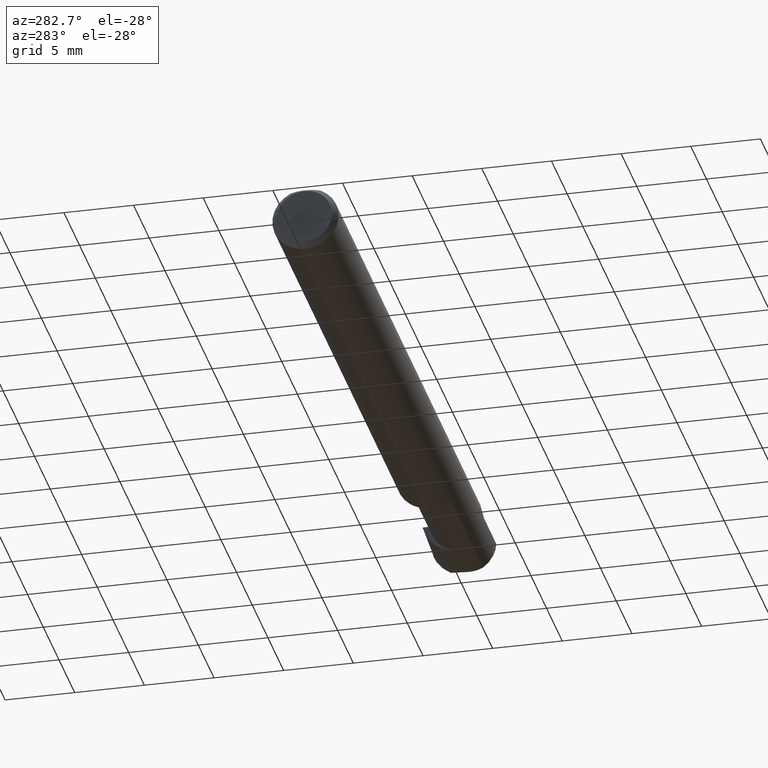
[diagram: clean part render]
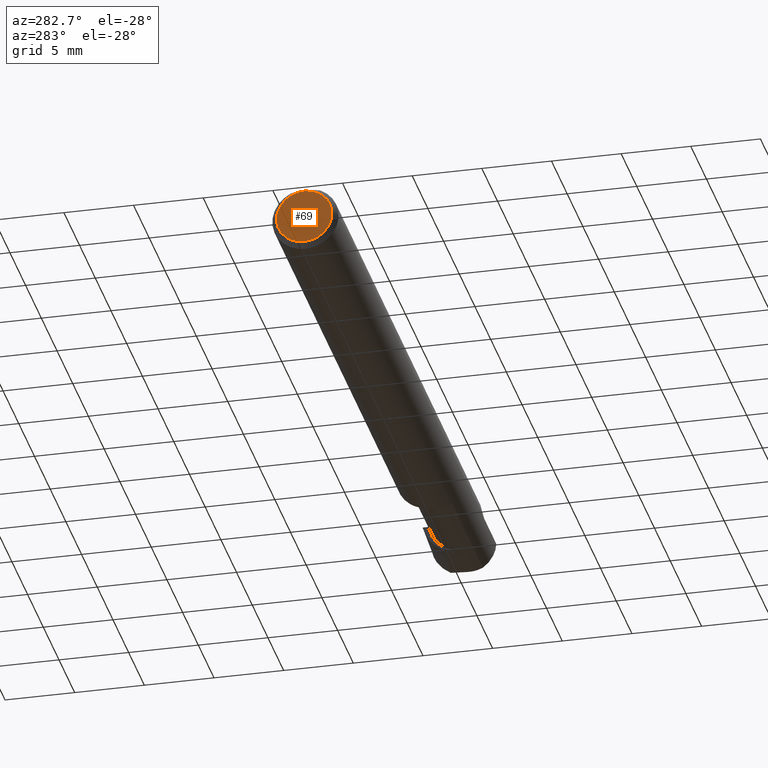
[diagram: same view with one face highlighted and labeled with its STEP entity id]
A machine part, auxiliary view. The second image highlights one B-rep face of the part: STEP entity #69.
In plain terms, the highlighted planar face has unit normal (1, 0, 0).
Its self-contained STEP definition (entity closure, byte-faithful):
#45 = EDGE_LOOP ( 'NONE', ( #551, #76 ) ) ;
#68 = PLANE ( 'NONE',  #318 ) ;
#69 = ADVANCED_FACE ( 'NONE', ( #594 ), #68, .F. ) ;
#72 = CIRCLE ( 'NONE', #450, 0.07859999999999980891 ) ;
#76 = ORIENTED_EDGE ( 'NONE', *, *, #586, .T. ) ;
#116 = DIRECTION ( 'NONE',  ( 1.000000000000000000, 0.000000000000000000, 0.000000000000000000 ) ) ;
#161 = DIRECTION ( 'NONE',  ( 0.000000000000000000, 0.000000000000000000, -1.000000000000000000 ) ) ;
#169 = CARTESIAN_POINT ( 'NONE',  ( 0.000000000000000000, 0.000000000000000000, 0.000000000000000000 ) ) ;
#194 = CARTESIAN_POINT ( 'NONE',  ( 0.000000000000000000, 1.054420894065869948E-17, 0.07859999999999980891 ) ) ;
#256 = AXIS2_PLACEMENT_3D ( 'NONE', #478, #625, #378 ) ;
#297 = EDGE_CURVE ( 'NONE', #529, #331, #575, .T. ) ;
#318 = AXIS2_PLACEMENT_3D ( 'NONE', #169, #116, #161 ) ;
#331 = VERTEX_POINT ( 'NONE', #194 ) ;
#356 = CARTESIAN_POINT ( 'NONE',  ( 0.000000000000000000, 0.000000000000000000, -0.07859999999999980891 ) ) ;
#366 = CARTESIAN_POINT ( 'NONE',  ( 0.000000000000000000, 0.000000000000000000, 0.000000000000000000 ) ) ;
#378 = DIRECTION ( 'NONE',  ( 0.000000000000000000, 0.000000000000000000, -1.000000000000000000 ) ) ;
#450 = AXIS2_PLACEMENT_3D ( 'NONE', #366, #455, #619 ) ;
#455 = DIRECTION ( 'NONE',  ( -1.000000000000000000, -0.000000000000000000, -0.000000000000000000 ) ) ;
#478 = CARTESIAN_POINT ( 'NONE',  ( 0.000000000000000000, 0.000000000000000000, 0.000000000000000000 ) ) ;
#529 = VERTEX_POINT ( 'NONE', #356 ) ;
#551 = ORIENTED_EDGE ( 'NONE', *, *, #297, .T. ) ;
#575 = CIRCLE ( 'NONE', #256, 0.07859999999999980891 ) ;
#586 = EDGE_CURVE ( 'NONE', #331, #529, #72, .T. ) ;
#594 = FACE_OUTER_BOUND ( 'NONE', #45, .T. ) ;
#619 = DIRECTION ( 'NONE',  ( 0.000000000000000000, 0.000000000000000000, -1.000000000000000000 ) ) ;
#625 = DIRECTION ( 'NONE',  ( -1.000000000000000000, -0.000000000000000000, -0.000000000000000000 ) ) ;